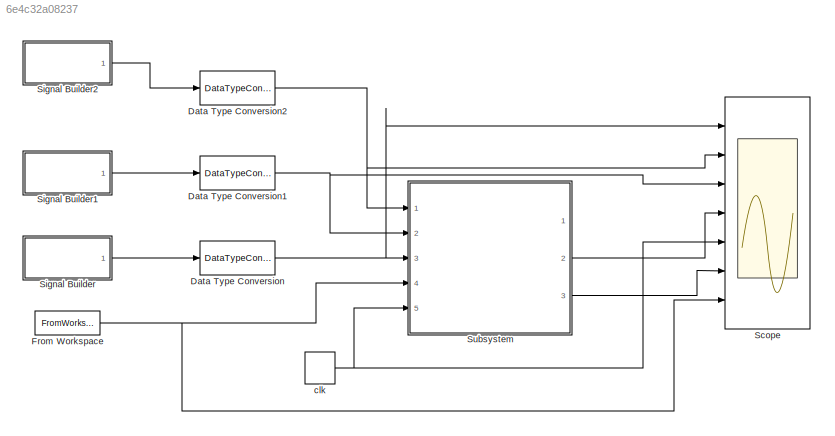
MODEL slx_6e4c32a08237
KIND model
CONFIG AbsTol = auto
CONFIG FixedStep = 1
CONFIG MaxStep = auto
CONFIG MinStep = auto
CONFIG RelTol = 1e-3
CONFIG SampleTimeConstraint = Unconstrained
CONFIG Solver = FixedStepDiscrete
CONFIG SolverMode = Auto
CONFIG SolverName = FixedStepDiscrete
CONFIG StartTime = 0.0
CONFIG StopTime = 25
BLOCK [DataTypeConversion] Data Type Conversion
  OutDataTypeStr = boolean
  RndMeth = Floor
  SaturateOnIntegerOverflow = off
BLOCK [DataTypeConversion] Data Type Conversion1
  OutDataTypeStr = boolean
  RndMeth = Floor
  SaturateOnIntegerOverflow = off
BLOCK [DataTypeConversion] Data Type Conversion2
  OutDataTypeStr = boolean
  RndMeth = Floor
  SaturateOnIntegerOverflow = off
BLOCK [FromWorkspace] From Workspace
  SampleTime = 0
  VariableName = array
  ZeroCross = on
BLOCK [Scope] Scope
  DataFormat = StructureWithTime
  Floating = off
  MaxDataPoints = 5000000
  NumInputPorts = 7
  Ports = [7]
  SampleTime = 0
  YMax = 5~5~5~5~5~5~5
  YMin = -5~-5~-5~-5~-5~-5~-5
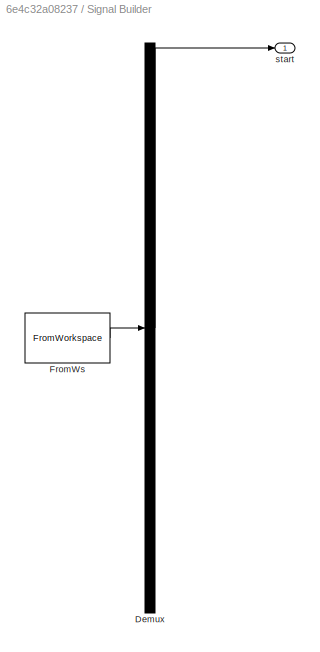
BLOCK [SubSystem] Signal Builder
  ClipboardFcn = sigbuilder_block('clipboard');
  CloseFcn = sigbuilder_block('close');
  ContinueFcn = sigbuilder_block('continue');
  CopyFcn = sigbuilder_block('copy');
  DeleteFcn = sigbuilder_block('delete');
  LoadFcn = sigbuilder_block('load');
  MaskHideContents = on
  ModelCloseFcn = sigbuilder_block('modelClose');
  NameChangeFcn = sigbuilder_block('namechange');
  OpenFcn = sigbuilder_block('open',[408 61.5 550.5 399.75 ]);
  PauseFcn = sigbuilder_block('pause');
  Ports = [0, 1]
  PreSaveFcn = sigbuilder_block('preSave');
  RequestExecContextInheritance = off
  StartFcn = sigbuilder_block('start');
  StopFcn = sigbuilder_block('stop');
  Tag = STV Subsys
BLOCK [Demux] Signal Builder/Demux
  Outputs = 1
  Ports = [1, 1]
  Tag = STV Demux
BLOCK [FromWorkspace] Signal Builder/FromWs
  OutputAfterFinalValue = Setting to zero
  SampleTime = 0
  Tag = STV FromWs
  VariableName = tuvar
  ZeroCross = on
BLOCK [Outport] Signal Builder/start
  IconDisplay = Port number
  Tag = STV Outport
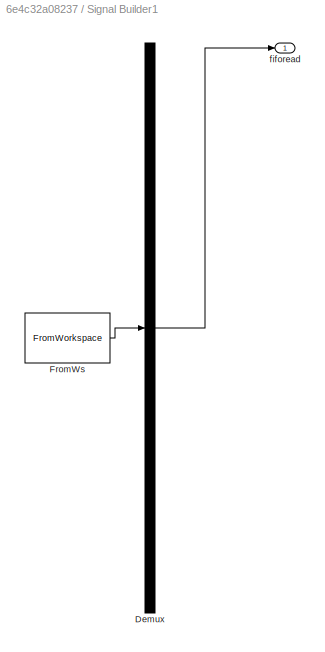
BLOCK [SubSystem] Signal Builder1
  ClipboardFcn = sigbuilder_block('clipboard');
  CloseFcn = sigbuilder_block('close');
  ContinueFcn = sigbuilder_block('continue');
  CopyFcn = sigbuilder_block('copy');
  DeleteFcn = sigbuilder_block('delete');
  LoadFcn = sigbuilder_block('load');
  MaskHideContents = on
  ModelCloseFcn = sigbuilder_block('modelClose');
  NameChangeFcn = sigbuilder_block('namechange');
  OpenFcn = sigbuilder_block('open',[408 61.5 550.5 399.75 ]);
  PauseFcn = sigbuilder_block('pause');
  Ports = [0, 1]
  PreSaveFcn = sigbuilder_block('preSave');
  RequestExecContextInheritance = off
  StartFcn = sigbuilder_block('start');
  StopFcn = sigbuilder_block('stop');
  Tag = STV Subsys
BLOCK [Demux] Signal Builder1/Demux
  Outputs = 1
  Ports = [1, 1]
  Tag = STV Demux
BLOCK [FromWorkspace] Signal Builder1/FromWs
  SampleTime = 0
  Tag = STV FromWs
  VariableName = tuvar
  ZeroCross = on
BLOCK [Outport] Signal Builder1/fiforead
  IconDisplay = Port number
  Tag = STV Outport
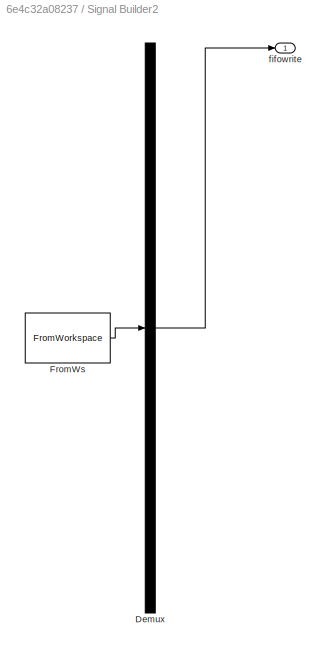
BLOCK [SubSystem] Signal Builder2
  ClipboardFcn = sigbuilder_block('clipboard');
  CloseFcn = sigbuilder_block('close');
  ContinueFcn = sigbuilder_block('continue');
  CopyFcn = sigbuilder_block('copy');
  DeleteFcn = sigbuilder_block('delete');
  LoadFcn = sigbuilder_block('load');
  MaskHideContents = on
  ModelCloseFcn = sigbuilder_block('modelClose');
  NameChangeFcn = sigbuilder_block('namechange');
  OpenFcn = sigbuilder_block('open',[408 61.5 550.5 399.75 ]);
  PauseFcn = sigbuilder_block('pause');
  Ports = [0, 1]
  PreSaveFcn = sigbuilder_block('preSave');
  RequestExecContextInheritance = off
  StartFcn = sigbuilder_block('start');
  StopFcn = sigbuilder_block('stop');
  Tag = STV Subsys
BLOCK [Demux] Signal Builder2/Demux
  Outputs = 1
  Ports = [1, 1]
  Tag = STV Demux
BLOCK [FromWorkspace] Signal Builder2/FromWs
  SampleTime = 0
  Tag = STV FromWs
  VariableName = tuvar
  ZeroCross = on
BLOCK [Outport] Signal Builder2/fifowrite
  IconDisplay = Port number
  Tag = STV Outport
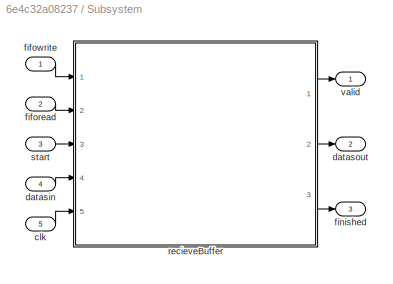
BLOCK [SubSystem] Subsystem
  Ports = [5, 3]
  RequestExecContextInheritance = off
BLOCK [Inport] Subsystem/clk
  IconDisplay = Port number
  Port = 5
BLOCK [Inport] Subsystem/datasin
  IconDisplay = Port number
  Port = 4
BLOCK [Outport] Subsystem/datasout
  IconDisplay = Port number
  Port = 2
BLOCK [Inport] Subsystem/fiforead
  IconDisplay = Port number
  Port = 2
BLOCK [Inport] Subsystem/fifowrite
  IconDisplay = Port number
BLOCK [Outport] Subsystem/finished
  IconDisplay = Port number
  Port = 3
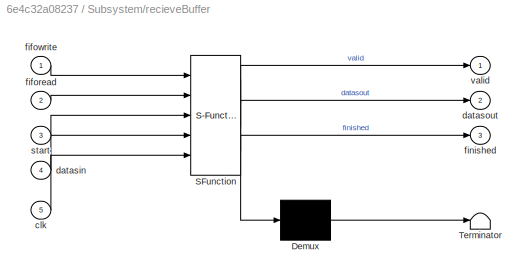
BLOCK [SubSystem] Subsystem/recieveBuffer
  ErrorFcn = Stateflow.Translate.translate
  PermitHierarchicalResolution = ExplicitOnly
  Ports = [5, 3]
  RequestExecContextInheritance = off
  SFBlockType = Chart
  TreatAsAtomicUnit = on
BLOCK [Demux] Subsystem/recieveBuffer/ Demux 
  Outputs = 1
  Ports = [1, 1]
BLOCK [S-Function] Subsystem/recieveBuffer/ SFunction 
  EnableBusSupport = on
  FunctionName = sf_sfun
  PortCounts = [5 4]
  Ports = [5, 4]
  Tag = Stateflow S-Function receiveBuffer 3
BLOCK [Terminator] Subsystem/recieveBuffer/ Terminator 
BLOCK [Inport] Subsystem/recieveBuffer/clk
  IconDisplay = Port number
  Port = 5
BLOCK [Inport] Subsystem/recieveBuffer/datasin
  IconDisplay = Port number
  Port = 4
BLOCK [Outport] Subsystem/recieveBuffer/datasout
  IconDisplay = Port number
  Port = 2
BLOCK [Inport] Subsystem/recieveBuffer/fiforead
  IconDisplay = Port number
  Port = 2
BLOCK [Inport] Subsystem/recieveBuffer/fifowrite
  IconDisplay = Port number
BLOCK [Outport] Subsystem/recieveBuffer/finished
  IconDisplay = Port number
  Port = 3
BLOCK [Inport] Subsystem/recieveBuffer/start
  IconDisplay = Port number
  Port = 3
BLOCK [Outport] Subsystem/recieveBuffer/valid
  IconDisplay = Port number
BLOCK [Inport] Subsystem/start
  IconDisplay = Port number
  Port = 3
BLOCK [Outport] Subsystem/valid
  IconDisplay = Port number
BLOCK [DiscretePulseGenerator] clk
  Amplitude = true
  Ports = [0, 1]
  PulseType = Time based
  PulseWidth = 50
NET Data Type Conversion1:1 -> Scope:3, Subsystem:2
NET Data Type Conversion2:1 -> Scope:2, Subsystem:1
NET Data Type Conversion:1 -> Scope:1, Subsystem:3
NET From Workspace:1 -> Scope:7, Subsystem:4
LINE Signal Builder1:1 -> Data Type Conversion1:1
LINE Signal Builder2:1 -> Data Type Conversion2:1
LINE Signal Builder:1 -> Data Type Conversion:1
LINE Subsystem/clk:1 -> Subsystem/recieveBuffer:5
LINE Subsystem/datasin:1 -> Subsystem/recieveBuffer:4
LINE Subsystem/fiforead:1 -> Subsystem/recieveBuffer:2
LINE Subsystem/fifowrite:1 -> Subsystem/recieveBuffer:1
LINE Subsystem/recieveBuffer:1 -> Subsystem/valid:1
LINE Subsystem/recieveBuffer:2 -> Subsystem/datasout:1
LINE Subsystem/recieveBuffer:3 -> Subsystem/finished:1
LINE Subsystem/start:1 -> Subsystem/recieveBuffer:3
LINE Subsystem:2 -> Scope:4
LINE Subsystem:3 -> Scope:6
NET clk:1 -> Scope:5, Subsystem:5
note: NET lines group one-source signal fan-out (src -> all destinations, sorted); 1:1 wires keep LINE
CHART Subsystem/recieveBuffer states=2 transitions=25
  STATE_LABEL 'judge'
  STATE_LABEL '[fifowrite==true]'
  STATE_LABEL '[start==false]'
  STATE_LABEL '[start==true]\n{\ntail=uint8(1);\nhead=uint8(1);\nreadtag=false;\nvalid=false;\nfinished=false;\ndatasout=zero;\n}'
  STATE_LABEL '[fiforead==true]'
  STATE_LABEL '[tail==17]'
  STATE_LABEL '{\nvalid=false;\nfinished=false;\ndatasout=zero;\n}'
  STATE_LABEL '{\nfifo(:, tail)=datasin;\ntail=tail+1;\n}'
  STATE_LABEL '{tail=uint8(1)}'
  STATE_LABEL '[head==tail]'
  STATE_LABEL '{\nfinished=false;\nvalid=true;\ndatasout=fifo(:, head);\nhead=head+1;\n}'
  STATE_LABEL '{ \nhead=uint8(1);\ntail=uint8(1);\nreadtag=false;\nfinished=true;\nvalid=false;\ndatasout=zero;\n}'
  STATE_LABEL '{\nvalid=false;\nfinished=false;\ndatasout=zero;\n}'
  STATE_LABEL 'start\n'
  STATE_LABEL '[clk==1]\n{\njudge();\n}'
